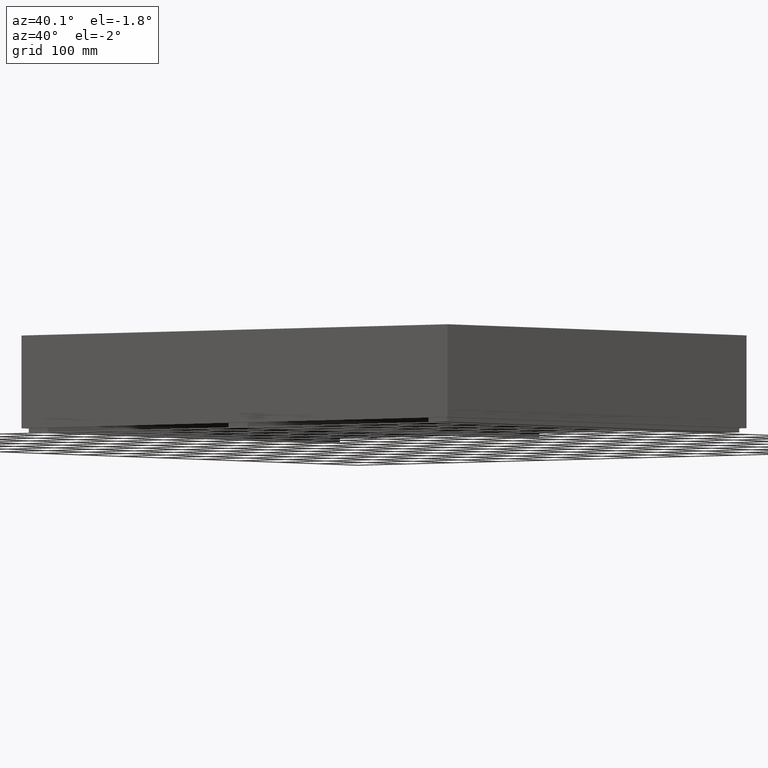
[diagram: clean part render]
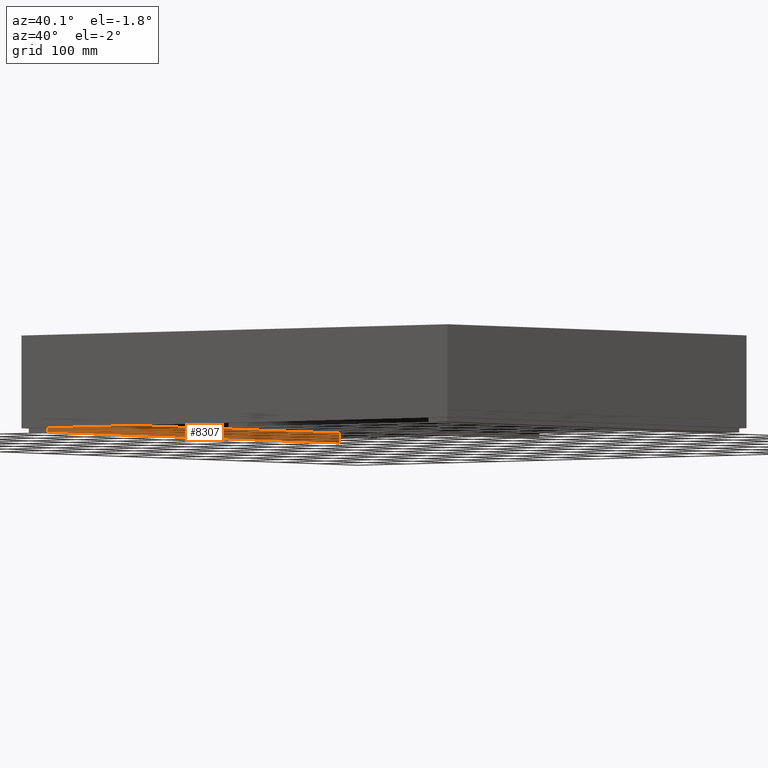
[diagram: same view with one face highlighted and labeled with its STEP entity id]
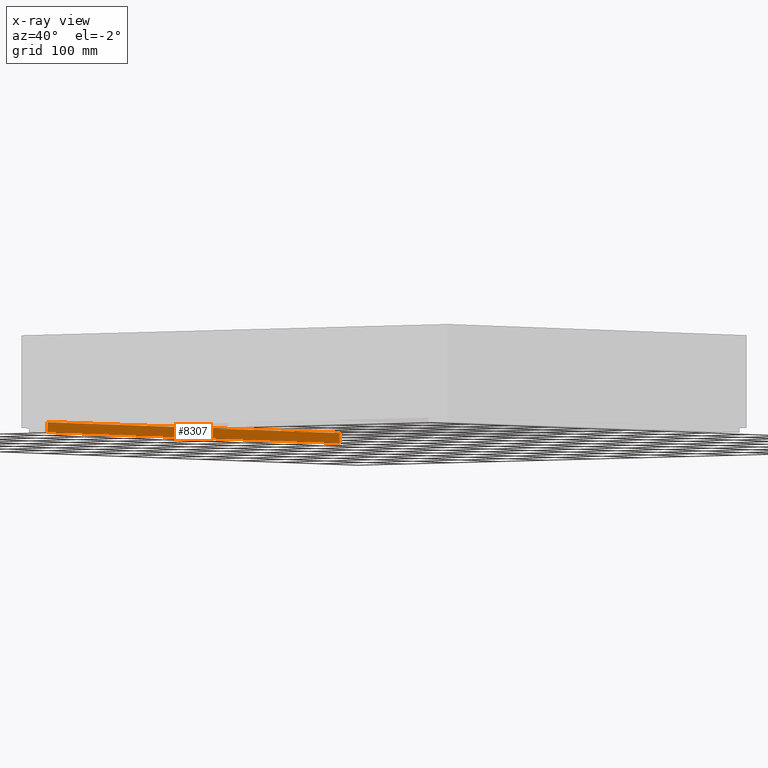
[diagram: x-ray of the same camera — body ghosted, the highlighted face saturated]
A machine part, auxiliary view. The second image highlights one B-rep face of the part: STEP entity #8307.
The next image is the same camera in x-ray: the body ghosted, the highlighted face saturated — about 3% of this face is hidden behind the body in this view.
In plain terms, the highlighted planar face has unit normal (-1, 0, 0).
Its self-contained STEP definition (entity closure, byte-faithful):
#224 = CARTESIAN_POINT ( 'NONE',  ( 47.99999999999998579, 741.4999000000002525, -157.0000000000002558 ) ) ;
#430 = VECTOR ( 'NONE', #9138, 1000.000000000000000 ) ;
#441 = ORIENTED_EDGE ( 'NONE', *, *, #5083, .F. ) ;
#1044 = CARTESIAN_POINT ( 'NONE',  ( 47.99999999999987921, 8.500000000000119016, -157.0000000000002558 ) ) ;
#1066 = EDGE_CURVE ( 'NONE', #8196, #8658, #2315, .T. ) ;
#1086 = VECTOR ( 'NONE', #3630, 1000.000000000000000 ) ;
#1170 = CARTESIAN_POINT ( 'NONE',  ( 48.00000000000004263, 741.4999000000002525, -141.0000000000002274 ) ) ;
#1384 = CARTESIAN_POINT ( 'NONE',  ( 47.99999999999998579, 741.4999000000002525, -157.0000000000002558 ) ) ;
#1562 = ORIENTED_EDGE ( 'NONE', *, *, #1066, .T. ) ;
#1807 = DIRECTION ( 'NONE',  ( 1.423362852083532914E-16, -9.629649721936179265E-35, 1.000000000000000000 ) ) ;
#1867 = CARTESIAN_POINT ( 'NONE',  ( 47.99999999999992895, 8.500000000000119016, -141.0000000000002274 ) ) ;
#2315 = LINE ( 'NONE', #5713, #430 ) ;
#2485 = AXIS2_PLACEMENT_3D ( 'NONE', #1384, #4771, #8193 ) ;
#3466 = EDGE_LOOP ( 'NONE', ( #1562, #441, #9593, #9307 ) ) ;
#3630 = DIRECTION ( 'NONE',  ( -1.514629162466674743E-16, -1.000000000000000000, 9.629649721936179265E-35 ) ) ;
#3633 = CARTESIAN_POINT ( 'NONE',  ( 47.99999999999998579, 741.4999000000002525, -157.0000000000002558 ) ) ;
#4434 = DIRECTION ( 'NONE',  ( 1.423362852083532914E-16, -9.629649721936179265E-35, 1.000000000000000000 ) ) ;
#4771 = DIRECTION ( 'NONE',  ( -1.000000000000000000, 1.514629162466674743E-16, 1.423362852083532914E-16 ) ) ;
#5083 = EDGE_CURVE ( 'NONE', #8628, #8658, #8708, .T. ) ;
#5155 = VECTOR ( 'NONE', #1807, 1000.000000000000000 ) ;
#5617 = FACE_OUTER_BOUND ( 'NONE', #3466, .T. ) ;
#5713 = CARTESIAN_POINT ( 'NONE',  ( 48.00000000000004263, 741.4999000000002525, -141.0000000000002274 ) ) ;
#6041 = LINE ( 'NONE', #9462, #5155 ) ;
#6208 = VECTOR ( 'NONE', #4434, 1000.000000000000000 ) ;
#6581 = EDGE_CURVE ( 'NONE', #9107, #8196, #6041, .T. ) ;
#7692 = EDGE_CURVE ( 'NONE', #9107, #8628, #7885, .T. ) ;
#7791 = CARTESIAN_POINT ( 'NONE',  ( 47.99999999999987921, 8.500000000000119016, -157.0000000000002558 ) ) ;
#7885 = LINE ( 'NONE', #224, #1086 ) ;
#8193 = DIRECTION ( 'NONE',  ( -1.514629162466674743E-16, -1.000000000000000000, 9.629649721936179265E-35 ) ) ;
#8196 = VERTEX_POINT ( 'NONE', #1170 ) ;
#8307 = ADVANCED_FACE ( 'NONE', ( #5617 ), #9036, .F. ) ;
#8628 = VERTEX_POINT ( 'NONE', #7791 ) ;
#8658 = VERTEX_POINT ( 'NONE', #1867 ) ;
#8708 = LINE ( 'NONE', #1044, #6208 ) ;
#9036 = PLANE ( 'NONE',  #2485 ) ;
#9107 = VERTEX_POINT ( 'NONE', #3633 ) ;
#9138 = DIRECTION ( 'NONE',  ( -1.514629162466674743E-16, -1.000000000000000000, 9.629649721936179265E-35 ) ) ;
#9307 = ORIENTED_EDGE ( 'NONE', *, *, #6581, .T. ) ;
#9462 = CARTESIAN_POINT ( 'NONE',  ( 47.99999999999998579, 741.4999000000002525, -157.0000000000002558 ) ) ;
#9593 = ORIENTED_EDGE ( 'NONE', *, *, #7692, .F. ) ;